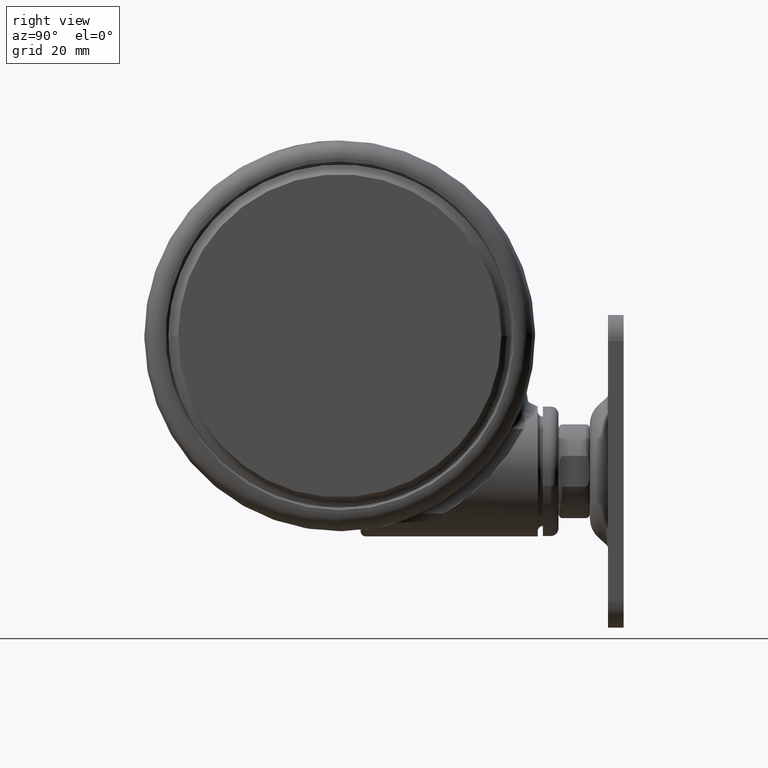
[diagram: clean part render]
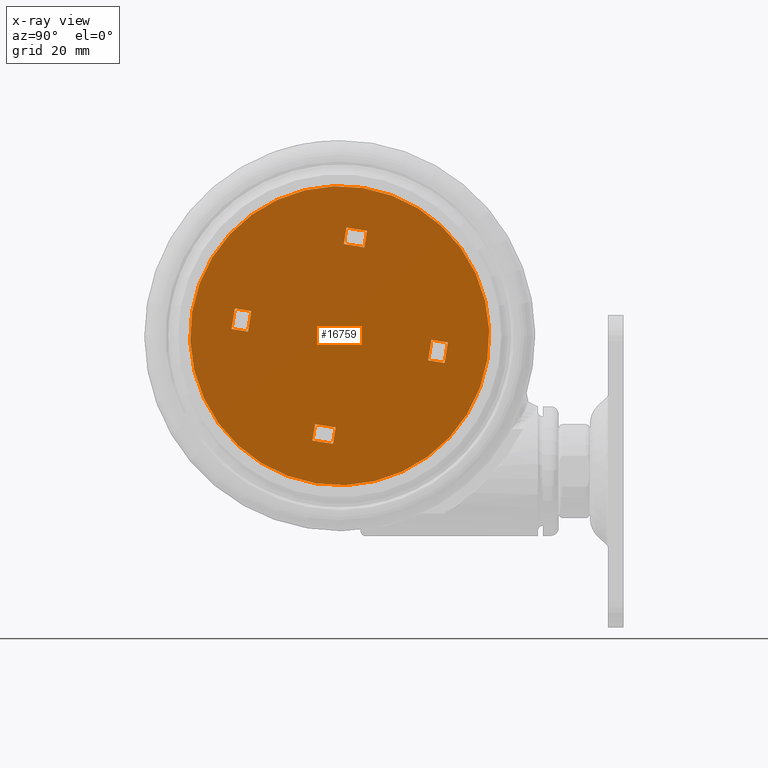
[diagram: x-ray — body ghosted, one internal face saturated and labeled with its STEP entity id]
A machine part, right view, then the same camera in x-ray: the body is ghosted and one INTERNAL B-rep face — a face not visible from any outside direction — is saturated and labeled: STEP entity #16759.
In plain terms, the highlighted planar face has unit normal (-1, 0, -0).
Its self-contained STEP definition (entity closure, byte-faithful):
#278 = DIRECTION ( 'NONE',  ( -0.0000000000000000000, 0.0000000000000000000, -1.000000000000000000 ) ) ;
#408 = VECTOR ( 'NONE', #26406, 1000.000000000000000 ) ;
#660 = VERTEX_POINT ( 'NONE', #30295 ) ;
#1408 = EDGE_LOOP ( 'NONE', ( #56872, #33714, #16713, #11789 ) ) ;
#1690 = FACE_BOUND ( 'NONE', #1408, .T. ) ;
#1772 = CARTESIAN_POINT ( 'NONE',  ( -17.59653525645663000, 0.7822703933285544100, -46.19999999999990300 ) ) ;
#2419 = EDGE_CURVE ( 'NONE', #56623, #3669, #43792, .T. ) ;
#2940 = LINE ( 'NONE', #41285, #49873 ) ;
#3187 = LINE ( 'NONE', #20080, #51522 ) ;
#3252 = EDGE_CURVE ( 'NONE', #660, #21543, #29515, .T. ) ;
#3669 = VERTEX_POINT ( 'NONE', #29365 ) ;
#3831 = CARTESIAN_POINT ( 'NONE',  ( 1.908195823574487800E-014, 0.0000000000000000000, -46.19999999999990300 ) ) ;
#4378 = DIRECTION ( 'NONE',  ( 0.1575593953139821600, 0.9875095123330671600, -0.0000000000000000000 ) ) ;
#5419 = CARTESIAN_POINT ( 'NONE',  ( -5.078939112351768000, -19.13881860233342600, -46.19999999999990300 ) ) ;
#5483 = CARTESIAN_POINT ( 'NONE',  ( 20.75656569592247500, -1.286460458333297300, -46.19999999999990300 ) ) ;
#5717 = EDGE_CURVE ( 'NONE', #20278, #17851, #33482, .T. ) ;
#6091 = VECTOR ( 'NONE', #8379, 1000.000000000000000 ) ;
#6889 = ORIENTED_EDGE ( 'NONE', *, *, #10194, .F. ) ;
#7589 = ORIENTED_EDGE ( 'NONE', *, *, #3252, .T. ) ;
#7987 = VERTEX_POINT ( 'NONE', #1772 ) ;
#7994 = EDGE_CURVE ( 'NONE', #14248, #37130, #46098, .T. ) ;
#8379 = DIRECTION ( 'NONE',  ( 0.9875095123330672700, -0.1575593953139818300, 0.0000000000000000000 ) ) ;
#8433 = DIRECTION ( 'NONE',  ( -0.1575593953139821600, -0.9875095123330672700, 0.0000000000000000000 ) ) ;
#8652 = VECTOR ( 'NONE', #25852, 1000.000000000000100 ) ;
#9079 = EDGE_CURVE ( 'NONE', #37130, #14248, #31069, .T. ) ;
#9273 = PLANE ( 'NONE',  #20490 ) ;
#10049 = VERTEX_POINT ( 'NONE', #43466 ) ;
#10194 = EDGE_CURVE ( 'NONE', #10049, #7987, #12533, .T. ) ;
#10261 = LINE ( 'NONE', #26344, #46510 ) ;
#10486 = CARTESIAN_POINT ( 'NONE',  ( 5.236498507665655400, 20.12632811466651700, -46.19999999999990300 ) ) ;
#10568 = EDGE_CURVE ( 'NONE', #56623, #28759, #31717, .T. ) ;
#11585 = EDGE_CURVE ( 'NONE', #16937, #44807, #10261, .T. ) ;
#11789 = ORIENTED_EDGE ( 'NONE', *, *, #10568, .T. ) ;
#12298 = CARTESIAN_POINT ( 'NONE',  ( 5.236498507665655400, 20.12632811466651700, -46.19999999999990300 ) ) ;
#12533 = LINE ( 'NONE', #44457, #408 ) ;
#12751 = LINE ( 'NONE', #5419, #23486 ) ;
#13099 = CARTESIAN_POINT ( 'NONE',  ( 1.286460458333385200, 20.75656569592245000, -46.19999999999990300 ) ) ;
#13259 = EDGE_CURVE ( 'NONE', #19719, #44807, #2940, .T. ) ;
#13580 = EDGE_LOOP ( 'NONE', ( #44203, #7589, #49307, #52448 ) ) ;
#13702 = DIRECTION ( 'NONE',  ( 0.1575593953139821600, 0.9875095123330671600, -0.0000000000000000000 ) ) ;
#13745 = CARTESIAN_POINT ( 'NONE',  ( 19.76905618358940900, -1.128901063019314800, -46.19999999999990300 ) ) ;
#14008 = LINE ( 'NONE', #34240, #38146 ) ;
#14156 = CARTESIAN_POINT ( 'NONE',  ( 0.7822703933286325700, 17.59653525645663700, -46.19999999999990300 ) ) ;
#14248 = VERTEX_POINT ( 'NONE', #24052 ) ;
#14265 = VECTOR ( 'NONE', #13702, 1000.000000000000200 ) ;
#14289 = CARTESIAN_POINT ( 'NONE',  ( -17.59653525645663000, 0.7822703933285544100, -46.19999999999990300 ) ) ;
#15211 = ORIENTED_EDGE ( 'NONE', *, *, #13259, .F. ) ;
#15700 = LINE ( 'NONE', #49822, #14265 ) ;
#15986 = DIRECTION ( 'NONE',  ( -0.1575593953139821600, -0.9875095123330671600, -0.0000000000000000000 ) ) ;
#16713 = ORIENTED_EDGE ( 'NONE', *, *, #2419, .F. ) ;
#16759 = ADVANCED_FACE ( 'NONE', ( #25937, #1690, #48616, #36576, #24512 ), #9273, .F. ) ;
#16937 = VERTEX_POINT ( 'NONE', #47155 ) ;
#17357 = CARTESIAN_POINT ( 'NONE',  ( 19.13881860233347600, -5.078939112351584100, -46.19999999999990300 ) ) ;
#17628 = LINE ( 'NONE', #26388, #53848 ) ;
#17851 = VERTEX_POINT ( 'NONE', #26645 ) ;
#19561 = ORIENTED_EDGE ( 'NONE', *, *, #57182, .T. ) ;
#19629 = VECTOR ( 'NONE', #4378, 1000.000000000000200 ) ;
#19719 = VERTEX_POINT ( 'NONE', #25790 ) ;
#20080 = CARTESIAN_POINT ( 'NONE',  ( 1.128901063019398100, 19.76905618358938100, -46.19999999999990300 ) ) ;
#20095 = CARTESIAN_POINT ( 'NONE',  ( -16.96629767520070000, 4.732308442660824200, -46.19999999999990300 ) ) ;
#20278 = VERTEX_POINT ( 'NONE', #20095 ) ;
#20490 = AXIS2_PLACEMENT_3D ( 'NONE', #49969, #278, #32124 ) ;
#20672 = VERTEX_POINT ( 'NONE', #5483 ) ;
#21543 = VERTEX_POINT ( 'NONE', #14156 ) ;
#22098 = VERTEX_POINT ( 'NONE', #13099 ) ;
#22158 = EDGE_LOOP ( 'NONE', ( #36191, #40914 ) ) ;
#23067 = EDGE_CURVE ( 'NONE', #20278, #7987, #36662, .T. ) ;
#23486 = VECTOR ( 'NONE', #41440, 1000.000000000000200 ) ;
#24052 = CARTESIAN_POINT ( 'NONE',  ( 4.521954645511305800, 28.34152300395903600, -46.19999999999990300 ) ) ;
#24099 = VERTEX_POINT ( 'NONE', #37952 ) ;
#24463 = CARTESIAN_POINT ( 'NONE',  ( 5.078939112351667600, 19.13881860233344800, -46.19999999999990300 ) ) ;
#24512 = FACE_BOUND ( 'NONE', #49854, .T. ) ;
#24655 = DIRECTION ( 'NONE',  ( 0.1575593953139853000, 0.9875095123330668300, 0.0000000000000000000 ) ) ;
#24687 = DIRECTION ( 'NONE',  ( 0.0000000000000000000, -0.0000000000000000000, 1.000000000000000000 ) ) ;
#25790 = CARTESIAN_POINT ( 'NONE',  ( -1.286460458333490700, -20.75656569592242600, -46.19999999999990300 ) ) ;
#25852 = DIRECTION ( 'NONE',  ( 0.9875095123330667200, -0.1575593953139856600, -0.0000000000000000000 ) ) ;
#25937 = FACE_OUTER_BOUND ( 'NONE', #22158, .T. ) ;
#26344 = CARTESIAN_POINT ( 'NONE',  ( -0.7822703933287131800, -17.59653525645661900, -46.19999999999990300 ) ) ;
#26388 = CARTESIAN_POINT ( 'NONE',  ( -5.236498507665760200, -20.12632811466649600, -46.19999999999990300 ) ) ;
#26406 = DIRECTION ( 'NONE',  ( 0.9875095123330672700, -0.1575593953139818300, 0.0000000000000000000 ) ) ;
#26645 = CARTESIAN_POINT ( 'NONE',  ( -20.12632811466651000, 5.236498507665566600, -46.19999999999990300 ) ) ;
#27030 = VECTOR ( 'NONE', #24655, 999.9999999999998900 ) ;
#28759 = VERTEX_POINT ( 'NONE', #38638 ) ;
#29365 = CARTESIAN_POINT ( 'NONE',  ( 20.12632811466654600, -5.236498507665566600, -46.19999999999990300 ) ) ;
#29515 = LINE ( 'NONE', #42422, #52198 ) ;
#30295 = CARTESIAN_POINT ( 'NONE',  ( 4.732308442660902300, 16.96629767520071000, -46.19999999999990300 ) ) ;
#31069 = CIRCLE ( 'NONE', #44123, 28.70000000000000600 ) ;
#31568 = CARTESIAN_POINT ( 'NONE',  ( -19.13881860233344100, 5.078939112351584100, -46.19999999999990300 ) ) ;
#31602 = ORIENTED_EDGE ( 'NONE', *, *, #39702, .T. ) ;
#31717 = LINE ( 'NONE', #54260, #19629 ) ;
#32124 = DIRECTION ( 'NONE',  ( -0.1575593953139821600, -0.9875095123330671600, 0.0000000000000000000 ) ) ;
#32193 = EDGE_CURVE ( 'NONE', #22098, #41022, #56974, .T. ) ;
#33482 = LINE ( 'NONE', #31568, #53364 ) ;
#33714 = ORIENTED_EDGE ( 'NONE', *, *, #40075, .T. ) ;
#34065 = CARTESIAN_POINT ( 'NONE',  ( -0.7822703933287131800, -17.59653525645661900, -46.19999999999990300 ) ) ;
#34240 = CARTESIAN_POINT ( 'NONE',  ( 20.12632811466654600, -5.236498507665566600, -46.19999999999990300 ) ) ;
#35651 = DIRECTION ( 'NONE',  ( 0.0000000000000000000, -0.0000000000000000000, 1.000000000000000000 ) ) ;
#36191 = ORIENTED_EDGE ( 'NONE', *, *, #9079, .T. ) ;
#36576 = FACE_BOUND ( 'NONE', #13580, .T. ) ;
#36662 = LINE ( 'NONE', #14289, #38055 ) ;
#36838 = ORIENTED_EDGE ( 'NONE', *, *, #11585, .T. ) ;
#37130 = VERTEX_POINT ( 'NONE', #42427 ) ;
#37569 = ORIENTED_EDGE ( 'NONE', *, *, #5717, .F. ) ;
#37952 = CARTESIAN_POINT ( 'NONE',  ( -5.236498507665760200, -20.12632811466649600, -46.19999999999990300 ) ) ;
#38040 = EDGE_CURVE ( 'NONE', #660, #41022, #52545, .T. ) ;
#38055 = VECTOR ( 'NONE', #46069, 1000.000000000000200 ) ;
#38146 = VECTOR ( 'NONE', #15986, 1000.000000000000200 ) ;
#38638 = CARTESIAN_POINT ( 'NONE',  ( 17.59653525645666500, -0.7822703933285544100, -46.19999999999990300 ) ) ;
#39702 = EDGE_CURVE ( 'NONE', #19719, #24099, #17628, .T. ) ;
#40075 = EDGE_CURVE ( 'NONE', #20672, #3669, #14008, .T. ) ;
#40914 = ORIENTED_EDGE ( 'NONE', *, *, #7994, .T. ) ;
#41022 = VERTEX_POINT ( 'NONE', #10486 ) ;
#41285 = CARTESIAN_POINT ( 'NONE',  ( -1.128901063019498400, -19.76905618358935600, -46.19999999999990300 ) ) ;
#41440 = DIRECTION ( 'NONE',  ( -0.1575593953139921800, -0.9875095123330656100, 0.0000000000000000000 ) ) ;
#42422 = CARTESIAN_POINT ( 'NONE',  ( 0.7822703933286325700, 17.59653525645663700, -46.19999999999990300 ) ) ;
#42427 = CARTESIAN_POINT ( 'NONE',  ( -4.521954645511270200, -28.34152300395903600, -46.19999999999990300 ) ) ;
#43449 = VECTOR ( 'NONE', #45519, 1000.000000000000000 ) ;
#43466 = CARTESIAN_POINT ( 'NONE',  ( -20.75656569592244300, 1.286460458333297300, -46.19999999999990300 ) ) ;
#43792 = LINE ( 'NONE', #17357, #6091 ) ;
#43981 = ORIENTED_EDGE ( 'NONE', *, *, #23067, .T. ) ;
#44123 = AXIS2_PLACEMENT_3D ( 'NONE', #3831, #35651, #8433 ) ;
#44203 = ORIENTED_EDGE ( 'NONE', *, *, #38040, .F. ) ;
#44457 = CARTESIAN_POINT ( 'NONE',  ( -19.76905618358937400, 1.128901063019314800, -46.19999999999990300 ) ) ;
#44807 = VERTEX_POINT ( 'NONE', #34065 ) ;
#45519 = DIRECTION ( 'NONE',  ( -0.9875095123330672700, 0.1575593953139818300, 0.0000000000000000000 ) ) ;
#45814 = EDGE_CURVE ( 'NONE', #22098, #21543, #3187, .T. ) ;
#46069 = DIRECTION ( 'NONE',  ( -0.1575593953139821600, -0.9875095123330671600, -0.0000000000000000000 ) ) ;
#46098 = CIRCLE ( 'NONE', #55885, 28.70000000000000600 ) ;
#46510 = VECTOR ( 'NONE', #58096, 1000.000000000000100 ) ;
#46981 = DIRECTION ( 'NONE',  ( -0.9875095123330667200, 0.1575593953139856600, -0.0000000000000000000 ) ) ;
#47155 = CARTESIAN_POINT ( 'NONE',  ( -4.732308442660982300, -16.96629767520068900, -46.19999999999990300 ) ) ;
#48616 = FACE_BOUND ( 'NONE', #56355, .T. ) ;
#49307 = ORIENTED_EDGE ( 'NONE', *, *, #45814, .F. ) ;
#49822 = CARTESIAN_POINT ( 'NONE',  ( -20.12632811466651000, 5.236498507665566600, -46.19999999999990300 ) ) ;
#49854 = EDGE_LOOP ( 'NONE', ( #54341, #36838, #15211, #31602 ) ) ;
#49873 = VECTOR ( 'NONE', #54799, 1000.000000000000200 ) ;
#49969 = CARTESIAN_POINT ( 'NONE',  ( 1.908195823574487800E-014, 0.0000000000000000000, -46.19999999999990300 ) ) ;
#50495 = EDGE_CURVE ( 'NONE', #16937, #24099, #12751, .T. ) ;
#51522 = VECTOR ( 'NONE', #51812, 999.9999999999998900 ) ;
#51812 = DIRECTION ( 'NONE',  ( -0.1575593953139853000, -0.9875095123330668300, 0.0000000000000000000 ) ) ;
#51849 = CARTESIAN_POINT ( 'NONE',  ( 1.908195823574487800E-014, 0.0000000000000000000, -46.19999999999990300 ) ) ;
#52198 = VECTOR ( 'NONE', #46981, 1000.000000000000100 ) ;
#52448 = ORIENTED_EDGE ( 'NONE', *, *, #32193, .T. ) ;
#52545 = LINE ( 'NONE', #24463, #27030 ) ;
#53364 = VECTOR ( 'NONE', #54195, 1000.000000000000000 ) ;
#53669 = CARTESIAN_POINT ( 'NONE',  ( 16.96629767520073500, -4.732308442660824200, -46.19999999999990300 ) ) ;
#53848 = VECTOR ( 'NONE', #58148, 1000.000000000000100 ) ;
#54195 = DIRECTION ( 'NONE',  ( -0.9875095123330672700, 0.1575593953139818300, 0.0000000000000000000 ) ) ;
#54260 = CARTESIAN_POINT ( 'NONE',  ( 17.59653525645666500, -0.7822703933285544100, -46.19999999999990300 ) ) ;
#54341 = ORIENTED_EDGE ( 'NONE', *, *, #50495, .F. ) ;
#54799 = DIRECTION ( 'NONE',  ( 0.1575593953139921800, 0.9875095123330656100, 0.0000000000000000000 ) ) ;
#55553 = LINE ( 'NONE', #13745, #43449 ) ;
#55885 = AXIS2_PLACEMENT_3D ( 'NONE', #51849, #24687, #56458 ) ;
#56355 = EDGE_LOOP ( 'NONE', ( #6889, #19561, #37569, #43981 ) ) ;
#56458 = DIRECTION ( 'NONE',  ( -0.1575593953139821600, -0.9875095123330672700, 0.0000000000000000000 ) ) ;
#56623 = VERTEX_POINT ( 'NONE', #53669 ) ;
#56758 = EDGE_CURVE ( 'NONE', #20672, #28759, #55553, .T. ) ;
#56872 = ORIENTED_EDGE ( 'NONE', *, *, #56758, .F. ) ;
#56974 = LINE ( 'NONE', #12298, #8652 ) ;
#57182 = EDGE_CURVE ( 'NONE', #10049, #17851, #15700, .T. ) ;
#58096 = DIRECTION ( 'NONE',  ( 0.9875095123330656100, -0.1575593953139925700, -0.0000000000000000000 ) ) ;
#58148 = DIRECTION ( 'NONE',  ( -0.9875095123330656100, 0.1575593953139925700, -0.0000000000000000000 ) ) ;